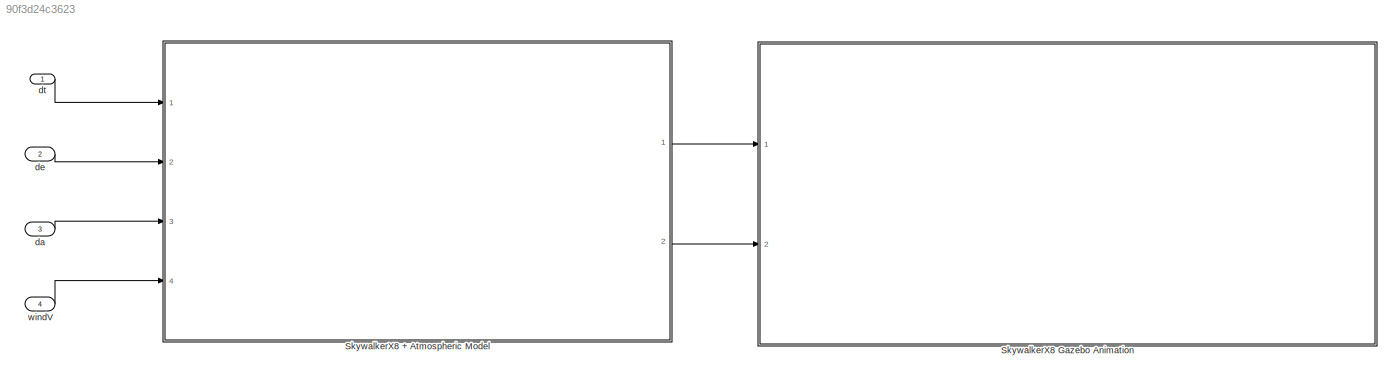
MODEL slx_90f3d24c3623
KIND model
CONFIG AbsTol = auto
CONFIG EnableMultiTasking = off
CONFIG FixedStep = 0.1
CONFIG MaxStep = auto
CONFIG MinStep = auto
CONFIG RelTol = 1e-3
CONFIG SampleTimeConstraint = Unconstrained
CONFIG Solver = FixedStepAuto
CONFIG SolverName = FixedStepAuto
CONFIG StartTime = 0.0
CONFIG StopTime = 10
WORKSPACE source: MAT-file member
WORKSPACE SL_ROS_VariableLengthArrays_MaxSizes: struct (value not decoded)
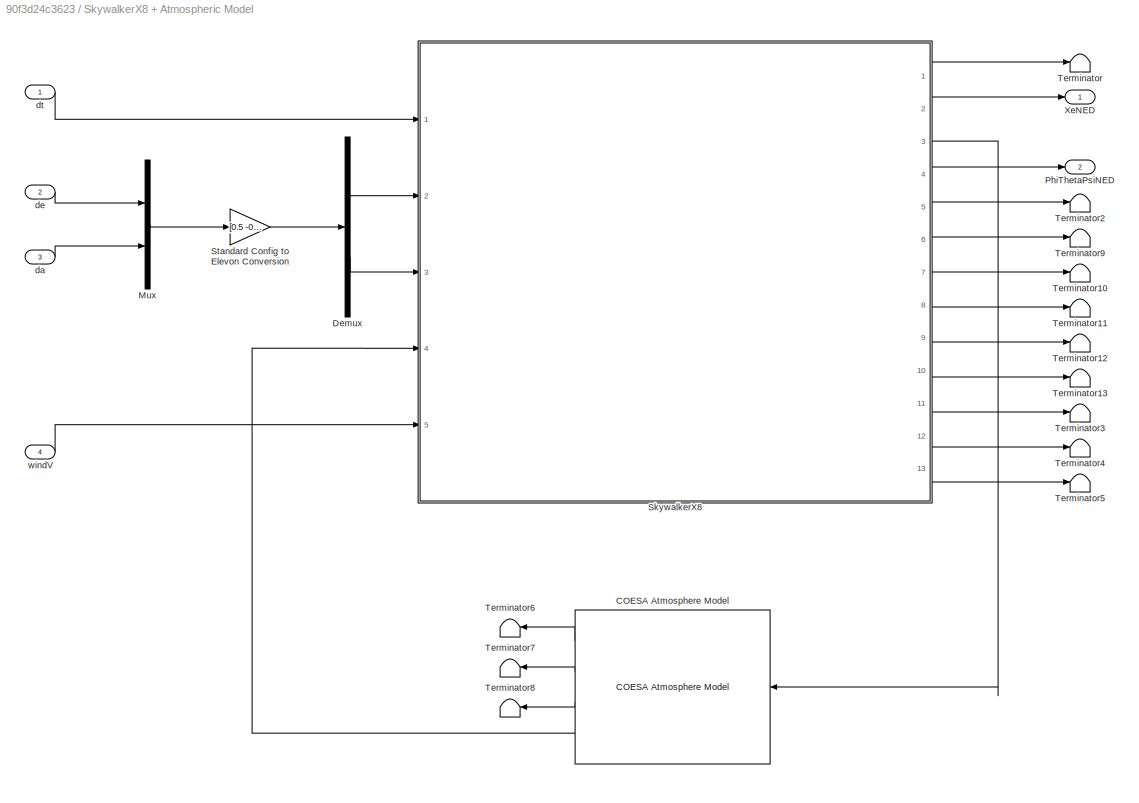
BLOCK [SubSystem] SkywalkerX8 + Atmospheric Model
  Ports = [4, 2]
  RequestExecContextInheritance = off
BLOCK [Reference] SkywalkerX8 + Atmospheric Model/COESA Atmosphere Model  REF=aerolibatmos2/COESA Atmosphere Model
  Ports = [1, 4]
  SourceBlock = aerolibatmos2/COESA Atmosphere Model
  SourceProductBaseCode = AE
  SourceProductName = Aerospace Blockset
  SourceType = Atmosphere Model
BLOCK [Demux] SkywalkerX8 + Atmospheric Model/Demux
  DisplayOption = bar
  Outputs = 2
  Ports = [1, 2]
BLOCK [Mux] SkywalkerX8 + Atmospheric Model/Mux
  DisplayOption = bar
  Inputs = 2
  Ports = [2, 1]
BLOCK [Outport] SkywalkerX8 + Atmospheric Model/PhiThetaPsiNED
  IconDisplay = Port number
  Port = 2
BLOCK [ModelReference] SkywalkerX8 + Atmospheric Model/SkywalkerX8
  ModelNameDialog = SkywalkerX8_AircraftModel
  ModelReferenceVersion = 1.162
  Ports = [5, 13]
BLOCK [Gain] SkywalkerX8 + Atmospheric Model/Standard Config to Elevon Conversion
  Gain = [0.5 -0.5;0.5 0.5]
  Multiplication = Matrix(K*u)
  OutDataTypeStr = Inherit: Inherit via internal rule
  ParamDataTypeStr = Inherit: Inherit via internal rule
  SaturateOnIntegerOverflow = off
BLOCK [Terminator] SkywalkerX8 + Atmospheric Model/Terminator
BLOCK [Terminator] SkywalkerX8 + Atmospheric Model/Terminator10
BLOCK [Terminator] SkywalkerX8 + Atmospheric Model/Terminator11
BLOCK [Terminator] SkywalkerX8 + Atmospheric Model/Terminator12
BLOCK [Terminator] SkywalkerX8 + Atmospheric Model/Terminator13
BLOCK [Terminator] SkywalkerX8 + Atmospheric Model/Terminator2
BLOCK [Terminator] SkywalkerX8 + Atmospheric Model/Terminator3
BLOCK [Terminator] SkywalkerX8 + Atmospheric Model/Terminator4
BLOCK [Terminator] SkywalkerX8 + Atmospheric Model/Terminator5
BLOCK [Terminator] SkywalkerX8 + Atmospheric Model/Terminator6
BLOCK [Terminator] SkywalkerX8 + Atmospheric Model/Terminator7
BLOCK [Terminator] SkywalkerX8 + Atmospheric Model/Terminator8
BLOCK [Terminator] SkywalkerX8 + Atmospheric Model/Terminator9
BLOCK [Outport] SkywalkerX8 + Atmospheric Model/XeNED
  IconDisplay = Port number
BLOCK [Inport] SkywalkerX8 + Atmospheric Model/da
  IconDisplay = Port number
  Port = 3
BLOCK [Inport] SkywalkerX8 + Atmospheric Model/de
  IconDisplay = Port number
  Port = 2
BLOCK [Inport] SkywalkerX8 + Atmospheric Model/dt
  IconDisplay = Port number
BLOCK [Inport] SkywalkerX8 + Atmospheric Model/windV
  IconDisplay = Port number
  Port = 4
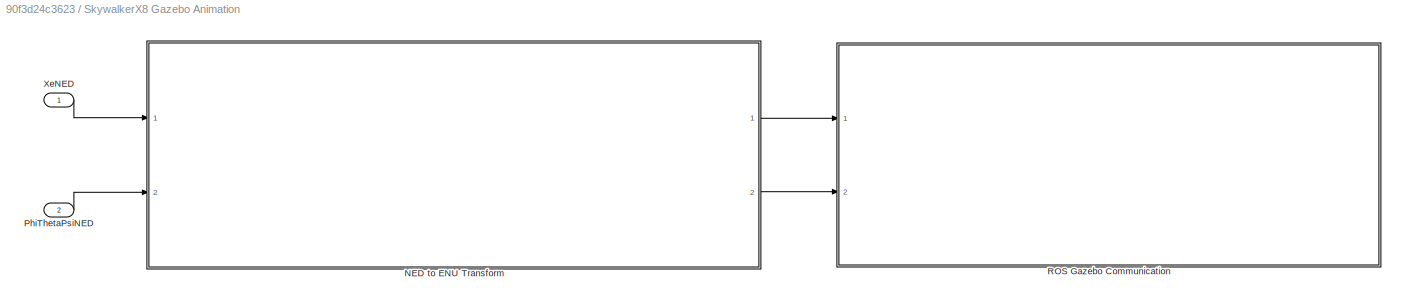
BLOCK [SubSystem] SkywalkerX8 Gazebo Animation
  Ports = [2]
  RequestExecContextInheritance = off
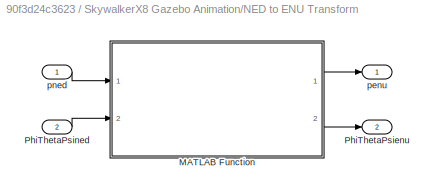
BLOCK [SubSystem] SkywalkerX8 Gazebo Animation/NED to ENU Transform 
  Ports = [2, 2]
  RequestExecContextInheritance = off
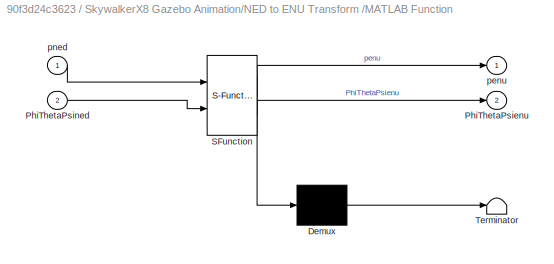
BLOCK [SubSystem] SkywalkerX8 Gazebo Animation/NED to ENU Transform /MATLAB Function
  ErrorFcn = Stateflow.Translate.translate
  PermitHierarchicalResolution = ExplicitOnly
  Ports = [2, 2]
  RequestExecContextInheritance = off
  SFBlockType = MATLAB Function
  TreatAsAtomicUnit = on
BLOCK [Demux] SkywalkerX8 Gazebo Animation/NED to ENU Transform /MATLAB Function/ Demux 
  Outputs = 1
  Ports = [1, 1]
BLOCK [S-Function] SkywalkerX8 Gazebo Animation/NED to ENU Transform /MATLAB Function/ SFunction 
  EnableBusSupport = on
  FunctionName = sf_sfun
  PortCounts = [2 3]
  Ports = [2, 3]
  SFcnIsStateOwnerBlock = off
  SFunctionDeploymentMode = off
  Tag = Stateflow S-Function SkywalkerX8_AircraftModel_ROSGazeboAnimation 2
BLOCK [Terminator] SkywalkerX8 Gazebo Animation/NED to ENU Transform /MATLAB Function/ Terminator 
BLOCK [Outport] SkywalkerX8 Gazebo Animation/NED to ENU Transform /MATLAB Function/PhiThetaPsienu
  IconDisplay = Port number
  Port = 2
BLOCK [Inport] SkywalkerX8 Gazebo Animation/NED to ENU Transform /MATLAB Function/PhiThetaPsined
  IconDisplay = Port number
  Port = 2
BLOCK [Outport] SkywalkerX8 Gazebo Animation/NED to ENU Transform /MATLAB Function/penu
  IconDisplay = Port number
BLOCK [Inport] SkywalkerX8 Gazebo Animation/NED to ENU Transform /MATLAB Function/pned
  IconDisplay = Port number
BLOCK [Outport] SkywalkerX8 Gazebo Animation/NED to ENU Transform /PhiThetaPsienu
  IconDisplay = Port number
  Port = 2
BLOCK [Inport] SkywalkerX8 Gazebo Animation/NED to ENU Transform /PhiThetaPsined
  IconDisplay = Port number
  Port = 2
BLOCK [Outport] SkywalkerX8 Gazebo Animation/NED to ENU Transform /penu
  IconDisplay = Port number
BLOCK [Inport] SkywalkerX8 Gazebo Animation/NED to ENU Transform /pned
  IconDisplay = Port number
BLOCK [Inport] SkywalkerX8 Gazebo Animation/PhiThetaPsiNED
  IconDisplay = Port number
  Port = 2
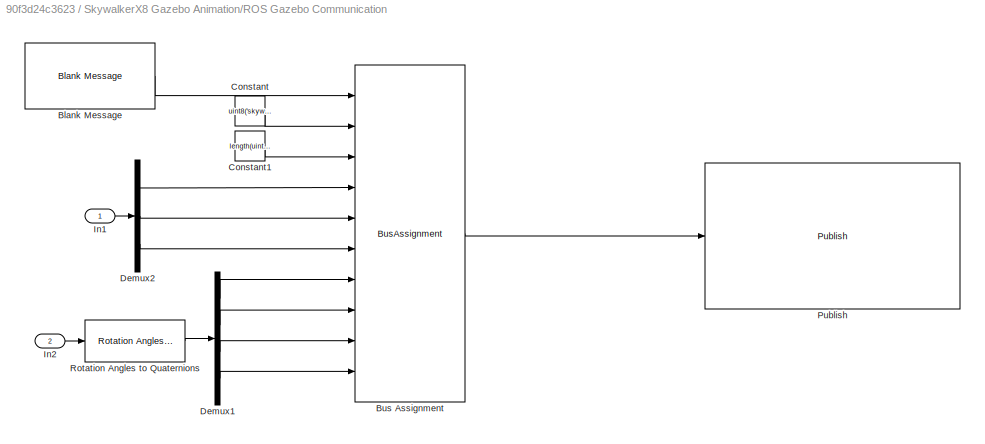
BLOCK [SubSystem] SkywalkerX8 Gazebo Animation/ROS Gazebo Communication
  Ports = [2]
  RequestExecContextInheritance = off
BLOCK [Reference] SkywalkerX8 Gazebo Animation/ROS Gazebo Communication/Blank Message  REF=robotlib/Blank Message
  Ports = [0, 1]
  SourceBlock = robotlib/Blank Message
  SourceLibraryInfo = This block requires Robotics System Toolbox
  SourceProductBaseCode = RO
  SourceProductName = Robotics System Toolbox
  SourceType = ROS Blank Message
BLOCK [BusAssignment] SkywalkerX8 Gazebo Animation/ROS Gazebo Communication/Bus Assignment
  AssignedSignals = ModelName,ModelName_SL_Info.CurrentLength,Pose.Position.X,Pose.Position.Y,Pose.Position.Z,Pose.Orientation.W,Pose.Orientation.X,Pose.Orientation.Y,Pose.Orientation.Z
  Ports = [10, 1]
BLOCK [Constant] SkywalkerX8 Gazebo Animation/ROS Gazebo Communication/Constant
  Value = uint8('skywalker')
BLOCK [Constant] SkywalkerX8 Gazebo Animation/ROS Gazebo Communication/Constant1
  OutDataTypeStr = uint32
  Value = length(uint8('skywalker'))
BLOCK [Demux] SkywalkerX8 Gazebo Animation/ROS Gazebo Communication/Demux1
  DisplayOption = bar
  Ports = [1, 4]
BLOCK [Demux] SkywalkerX8 Gazebo Animation/ROS Gazebo Communication/Demux2
  DisplayOption = bar
  Outputs = 3
  Ports = [1, 3]
BLOCK [Inport] SkywalkerX8 Gazebo Animation/ROS Gazebo Communication/In1
  IconDisplay = Port number
BLOCK [Inport] SkywalkerX8 Gazebo Animation/ROS Gazebo Communication/In2
  IconDisplay = Port number
  Port = 2
BLOCK [Reference] SkywalkerX8 Gazebo Animation/ROS Gazebo Communication/Publish  REF=robotlib/Publish
  Ports = [1]
  SourceBlock = robotlib/Publish
  SourceLibraryInfo = This block requires Robotics System Toolbox
  SourceProductBaseCode = RO
  SourceProductName = Robotics System Toolbox
  SourceType = ROS Publish
BLOCK [Reference] SkywalkerX8 Gazebo Animation/ROS Gazebo Communication/Rotation Angles to Quaternions  REF=sharedtransform/Rotation Angles to Quaternions
  AttributesFormatString = Rotation Order: %<rotationOrder>
  Ports = [1, 1]
  SourceBlock = sharedtransform/Rotation Angles to Quaternions
  SourceProductBaseCode = AE
  SourceProductName = Aerospace Blockset
  SourceType = Ang2Quat
BLOCK [Inport] SkywalkerX8 Gazebo Animation/XeNED
  IconDisplay = Port number
BLOCK [Inport] da
  IconDisplay = Port number
  Port = 3
BLOCK [Inport] de
  IconDisplay = Port number
  Port = 2
BLOCK [Inport] dt
  IconDisplay = Port number
BLOCK [Inport] windV
  IconDisplay = Port number
  Port = 4
LINE SkywalkerX8 + Atmospheric Model/COESA Atmosphere Model:1 -> SkywalkerX8 + Atmospheric Model/Terminator6:1
LINE SkywalkerX8 + Atmospheric Model/COESA Atmosphere Model:2 -> SkywalkerX8 + Atmospheric Model/Terminator7:1
LINE SkywalkerX8 + Atmospheric Model/COESA Atmosphere Model:3 -> SkywalkerX8 + Atmospheric Model/Terminator8:1
LINE SkywalkerX8 + Atmospheric Model/COESA Atmosphere Model:4 -> SkywalkerX8 + Atmospheric Model/SkywalkerX8:4
LINE SkywalkerX8 + Atmospheric Model/Demux:1 -> SkywalkerX8 + Atmospheric Model/SkywalkerX8:2
LINE SkywalkerX8 + Atmospheric Model/Demux:2 -> SkywalkerX8 + Atmospheric Model/SkywalkerX8:3
LINE SkywalkerX8 + Atmospheric Model/Mux:1 -> SkywalkerX8 + Atmospheric Model/Standard Config to Elevon Conversion:1
LINE SkywalkerX8 + Atmospheric Model/SkywalkerX8:1 -> SkywalkerX8 + Atmospheric Model/Terminator:1
LINE SkywalkerX8 + Atmospheric Model/SkywalkerX8:10 -> SkywalkerX8 + Atmospheric Model/Terminator13:1
LINE SkywalkerX8 + Atmospheric Model/SkywalkerX8:11 -> SkywalkerX8 + Atmospheric Model/Terminator3:1
LINE SkywalkerX8 + Atmospheric Model/SkywalkerX8:12 -> SkywalkerX8 + Atmospheric Model/Terminator4:1
LINE SkywalkerX8 + Atmospheric Model/SkywalkerX8:13 -> SkywalkerX8 + Atmospheric Model/Terminator5:1
LINE SkywalkerX8 + Atmospheric Model/SkywalkerX8:2 -> SkywalkerX8 + Atmospheric Model/XeNED:1
LINE SkywalkerX8 + Atmospheric Model/SkywalkerX8:3 -> SkywalkerX8 + Atmospheric Model/COESA Atmosphere Model:1
LINE SkywalkerX8 + Atmospheric Model/SkywalkerX8:4 -> SkywalkerX8 + Atmospheric Model/PhiThetaPsiNED:1
LINE SkywalkerX8 + Atmospheric Model/SkywalkerX8:5 -> SkywalkerX8 + Atmospheric Model/Terminator2:1
LINE SkywalkerX8 + Atmospheric Model/SkywalkerX8:6 -> SkywalkerX8 + Atmospheric Model/Terminator9:1
LINE SkywalkerX8 + Atmospheric Model/SkywalkerX8:7 -> SkywalkerX8 + Atmospheric Model/Terminator10:1
LINE SkywalkerX8 + Atmospheric Model/SkywalkerX8:8 -> SkywalkerX8 + Atmospheric Model/Terminator11:1
LINE SkywalkerX8 + Atmospheric Model/SkywalkerX8:9 -> SkywalkerX8 + Atmospheric Model/Terminator12:1
LINE SkywalkerX8 + Atmospheric Model/Standard Config to Elevon Conversion:1 -> SkywalkerX8 + Atmospheric Model/Demux:1
LINE SkywalkerX8 + Atmospheric Model/da:1 -> SkywalkerX8 + Atmospheric Model/Mux:2
LINE SkywalkerX8 + Atmospheric Model/de:1 -> SkywalkerX8 + Atmospheric Model/Mux:1
LINE SkywalkerX8 + Atmospheric Model/dt:1 -> SkywalkerX8 + Atmospheric Model/SkywalkerX8:1
LINE SkywalkerX8 + Atmospheric Model/windV:1 -> SkywalkerX8 + Atmospheric Model/SkywalkerX8:5
LINE SkywalkerX8 + Atmospheric Model:1 -> SkywalkerX8 Gazebo Animation:1
LINE SkywalkerX8 + Atmospheric Model:2 -> SkywalkerX8 Gazebo Animation:2
LINE SkywalkerX8 Gazebo Animation/NED to ENU Transform /MATLAB Function:1 -> SkywalkerX8 Gazebo Animation/NED to ENU Transform /penu:1
LINE SkywalkerX8 Gazebo Animation/NED to ENU Transform /MATLAB Function:2 -> SkywalkerX8 Gazebo Animation/NED to ENU Transform /PhiThetaPsienu:1
LINE SkywalkerX8 Gazebo Animation/NED to ENU Transform /PhiThetaPsined:1 -> SkywalkerX8 Gazebo Animation/NED to ENU Transform /MATLAB Function:2
LINE SkywalkerX8 Gazebo Animation/NED to ENU Transform /pned:1 -> SkywalkerX8 Gazebo Animation/NED to ENU Transform /MATLAB Function:1
LINE SkywalkerX8 Gazebo Animation/NED to ENU Transform :1 -> SkywalkerX8 Gazebo Animation/ROS Gazebo Communication:1
LINE SkywalkerX8 Gazebo Animation/NED to ENU Transform :2 -> SkywalkerX8 Gazebo Animation/ROS Gazebo Communication:2
LINE SkywalkerX8 Gazebo Animation/PhiThetaPsiNED:1 -> SkywalkerX8 Gazebo Animation/NED to ENU Transform :2
LINE SkywalkerX8 Gazebo Animation/ROS Gazebo Communication/Blank Message:1 -> SkywalkerX8 Gazebo Animation/ROS Gazebo Communication/Bus Assignment:1
LINE SkywalkerX8 Gazebo Animation/ROS Gazebo Communication/Bus Assignment:1 -> SkywalkerX8 Gazebo Animation/ROS Gazebo Communication/Publish:1
LINE SkywalkerX8 Gazebo Animation/ROS Gazebo Communication/Constant1:1 -> SkywalkerX8 Gazebo Animation/ROS Gazebo Communication/Bus Assignment:3
LINE SkywalkerX8 Gazebo Animation/ROS Gazebo Communication/Constant:1 -> SkywalkerX8 Gazebo Animation/ROS Gazebo Communication/Bus Assignment:2
LINE SkywalkerX8 Gazebo Animation/ROS Gazebo Communication/Demux1:1 -> SkywalkerX8 Gazebo Animation/ROS Gazebo Communication/Bus Assignment:7
LINE SkywalkerX8 Gazebo Animation/ROS Gazebo Communication/Demux1:2 -> SkywalkerX8 Gazebo Animation/ROS Gazebo Communication/Bus Assignment:8
LINE SkywalkerX8 Gazebo Animation/ROS Gazebo Communication/Demux1:3 -> SkywalkerX8 Gazebo Animation/ROS Gazebo Communication/Bus Assignment:9
LINE SkywalkerX8 Gazebo Animation/ROS Gazebo Communication/Demux1:4 -> SkywalkerX8 Gazebo Animation/ROS Gazebo Communication/Bus Assignment:10
LINE SkywalkerX8 Gazebo Animation/ROS Gazebo Communication/Demux2:1 -> SkywalkerX8 Gazebo Animation/ROS Gazebo Communication/Bus Assignment:4
LINE SkywalkerX8 Gazebo Animation/ROS Gazebo Communication/Demux2:2 -> SkywalkerX8 Gazebo Animation/ROS Gazebo Communication/Bus Assignment:5
LINE SkywalkerX8 Gazebo Animation/ROS Gazebo Communication/Demux2:3 -> SkywalkerX8 Gazebo Animation/ROS Gazebo Communication/Bus Assignment:6
LINE SkywalkerX8 Gazebo Animation/ROS Gazebo Communication/In1:1 -> SkywalkerX8 Gazebo Animation/ROS Gazebo Communication/Demux2:1
LINE SkywalkerX8 Gazebo Animation/ROS Gazebo Communication/In2:1 -> SkywalkerX8 Gazebo Animation/ROS Gazebo Communication/Rotation Angles to Quaternions:1
LINE SkywalkerX8 Gazebo Animation/ROS Gazebo Communication/Rotation Angles to Quaternions:1 -> SkywalkerX8 Gazebo Animation/ROS Gazebo Communication/Demux1:1
LINE SkywalkerX8 Gazebo Animation/XeNED:1 -> SkywalkerX8 Gazebo Animation/NED to ENU Transform :1
LINE da:1 -> SkywalkerX8 + Atmospheric Model:3
LINE de:1 -> SkywalkerX8 + Atmospheric Model:2
LINE dt:1 -> SkywalkerX8 + Atmospheric Model:1
LINE windV:1 -> SkywalkerX8 + Atmospheric Model:4
CHART SkywalkerX8 Gazebo Animation/NED to ENU Transform /MATLAB Function states=1 transitions=1
  STATE_LABEL 'eML_blk_kernel()'
  STATE_LABEL 'SCRIPT:\nfunction [penu, PhiThetaPsienu] = f_NEDtoENU(pned, PhiThetaPsined)\n\n%% Description %%\n\n% This function takes in global coordinates and rotation in the NED (North\n% East Down) coordinate system, commonly used in aero applications, \n% and transforms this to the ENU (East North Up) coordinate system, commonly \n% used in robotics (and used by ROS for Gazebo simulations)\n\n% This will be accompl...<+315ch>'
